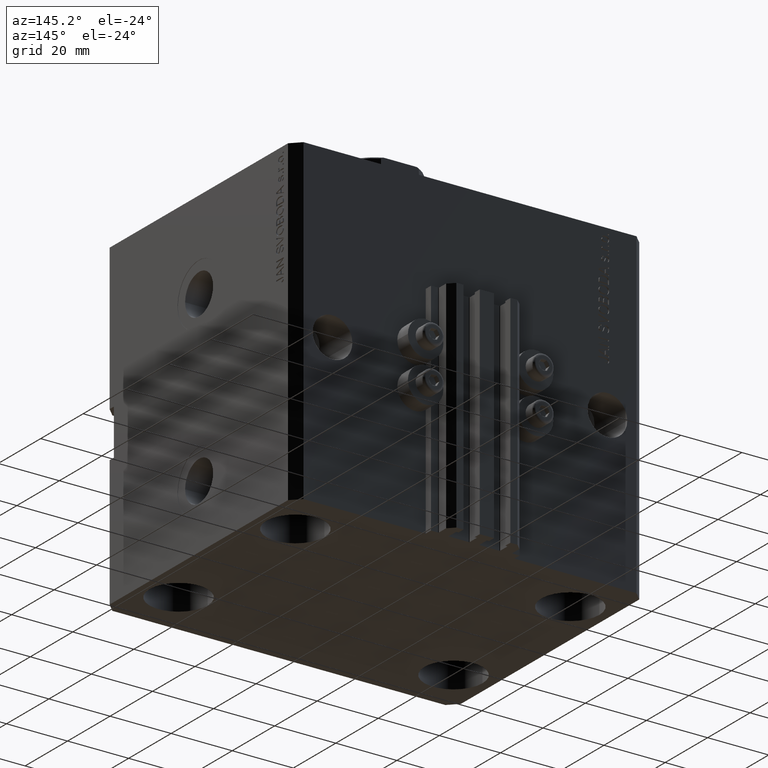
[diagram: clean part render]
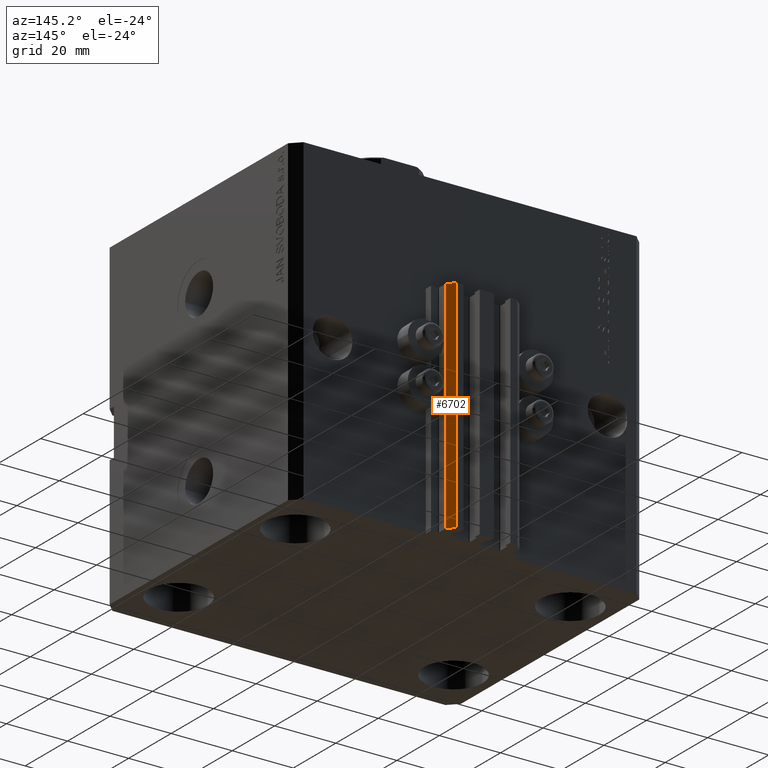
[diagram: same view with one face highlighted and labeled with its STEP entity id]
A machine part, auxiliary view. The second image highlights one B-rep face of the part: STEP entity #6702.
In plain terms, the highlighted planar face has unit normal (0.7071, 0.7071, 0).
Its self-contained STEP definition (entity closure, byte-faithful):
#220 = ORIENTED_EDGE ( 'NONE', *, *, #46317, .F. ) ;
#479 = VERTEX_POINT ( 'NONE', #31306 ) ;
#4046 = ORIENTED_EDGE ( 'NONE', *, *, #17631, .F. ) ;
#5494 = DIRECTION ( 'NONE',  ( -0.7071067811865474617, 0.7071067811865474617, 0.000000000000000000 ) ) ;
#6012 = LINE ( 'NONE', #13868, #31535 ) ;
#6702 = ADVANCED_FACE ( 'NONE', ( #41455 ), #26396, .T. ) ;
#7708 = DIRECTION ( 'NONE',  ( -0.7071067811865474617, 0.7071067811865474617, 0.000000000000000000 ) ) ;
#10067 = VERTEX_POINT ( 'NONE', #34255 ) ;
#13868 = CARTESIAN_POINT ( 'NONE',  ( 12.00000000000000000, 51.00000000000000711, -105.0000000000000000 ) ) ;
#14503 = CARTESIAN_POINT ( 'NONE',  ( 12.00000000000000000, 51.00000000000000711, -105.0000000000000000 ) ) ;
#16123 = ORIENTED_EDGE ( 'NONE', *, *, #40993, .T. ) ;
#16303 = CARTESIAN_POINT ( 'NONE',  ( 12.00000000000000000, 51.00000000000000711, -33.00000000000000000 ) ) ;
#16433 = VERTEX_POINT ( 'NONE', #35686 ) ;
#17631 = EDGE_CURVE ( 'NONE', #10067, #16433, #43162, .T. ) ;
#17904 = EDGE_CURVE ( 'NONE', #21938, #479, #45350, .T. ) ;
#21938 = VERTEX_POINT ( 'NONE', #14503 ) ;
#22456 = DIRECTION ( 'NONE',  ( 0.7071067811865475727, 0.7071067811865475727, -0.000000000000000000 ) ) ;
#24744 = DIRECTION ( 'NONE',  ( 0.000000000000000000, 0.000000000000000000, 1.000000000000000000 ) ) ;
#26396 = PLANE ( 'NONE',  #36281 ) ;
#31306 = CARTESIAN_POINT ( 'NONE',  ( 9.999999999999998224, 53.00000000000000711, -105.0000000000000000 ) ) ;
#31535 = VECTOR ( 'NONE', #39984, 1000.000000000000000 ) ;
#32578 = VECTOR ( 'NONE', #41898, 1000.000000000000114 ) ;
#33562 = CARTESIAN_POINT ( 'NONE',  ( 12.00000000000000000, 51.00000000000000711, -105.0000000000000000 ) ) ;
#33638 = ORIENTED_EDGE ( 'NONE', *, *, #17904, .T. ) ;
#34244 = CARTESIAN_POINT ( 'NONE',  ( 12.00000000000000000, 51.00000000000000711, -105.0000000000000000 ) ) ;
#34255 = CARTESIAN_POINT ( 'NONE',  ( 12.00000000000000000, 51.00000000000000711, -33.00000000000000000 ) ) ;
#35686 = CARTESIAN_POINT ( 'NONE',  ( 9.999999999999998224, 53.00000000000000711, -33.00000000000000000 ) ) ;
#36281 = AXIS2_PLACEMENT_3D ( 'NONE', #33562, #22456, #7708 ) ;
#37804 = EDGE_LOOP ( 'NONE', ( #4046, #220, #33638, #16123 ) ) ;
#39547 = LINE ( 'NONE', #43974, #41622 ) ;
#39984 = DIRECTION ( 'NONE',  ( 0.000000000000000000, 0.000000000000000000, 1.000000000000000000 ) ) ;
#40993 = EDGE_CURVE ( 'NONE', #479, #16433, #39547, .T. ) ;
#41455 = FACE_OUTER_BOUND ( 'NONE', #37804, .T. ) ;
#41622 = VECTOR ( 'NONE', #24744, 1000.000000000000000 ) ;
#41898 = DIRECTION ( 'NONE',  ( -0.7071067811865474617, 0.7071067811865474617, 0.000000000000000000 ) ) ;
#43162 = LINE ( 'NONE', #16303, #44367 ) ;
#43974 = CARTESIAN_POINT ( 'NONE',  ( 9.999999999999998224, 53.00000000000000711, -105.0000000000000000 ) ) ;
#44367 = VECTOR ( 'NONE', #5494, 1000.000000000000114 ) ;
#45350 = LINE ( 'NONE', #34244, #32578 ) ;
#46317 = EDGE_CURVE ( 'NONE', #21938, #10067, #6012, .T. ) ;